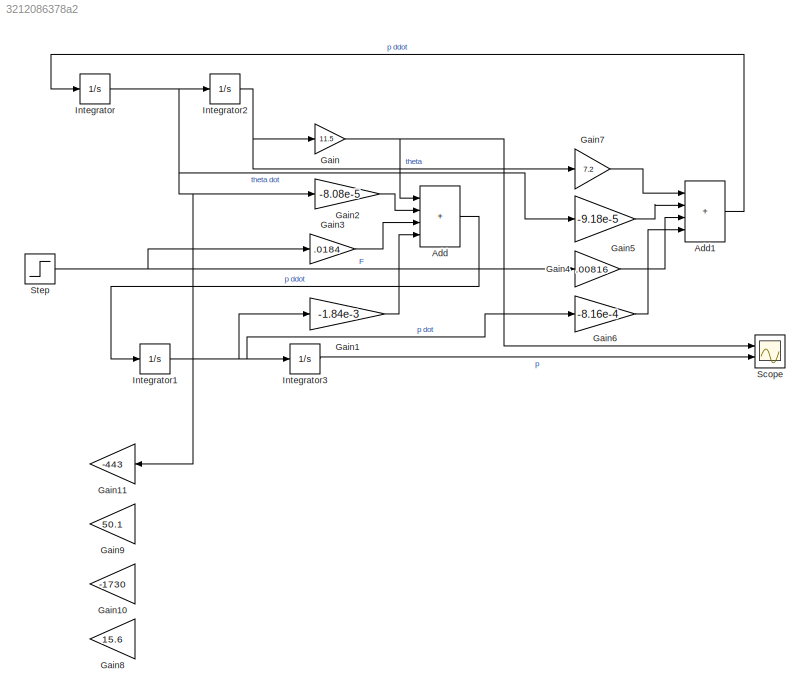
MODEL slx_3212086378a2
KIND model
CONFIG AbsTol = auto
CONFIG EnableMultiTasking = off
CONFIG FixedStep = auto
CONFIG MaxStep = auto
CONFIG MinStep = auto
CONFIG RelTol = 1e-3
CONFIG SampleTimeConstraint = Unconstrained
CONFIG Solver = VariableStepAuto
CONFIG SolverName = VariableStepAuto
CONFIG StartTime = 0.0
CONFIG StopTime = 10.0
BLOCK [Sum] Add
  IconShape = rectangular
  Inputs = ++++
  Ports = [4, 1]
BLOCK [Sum] Add1
  IconShape = rectangular
  Inputs = ++++
  Ports = [4, 1]
BLOCK [Gain] Gain
  Gain = 11.5
BLOCK [Gain] Gain1
  Gain = -1.84e-3
BLOCK [Gain] Gain10
  Gain = -1730
BLOCK [Gain] Gain11
  Gain = -443
BLOCK [Gain] Gain2
  Gain = -8.08e-5
BLOCK [Gain] Gain3
  Gain = .0184
BLOCK [Gain] Gain4
  Gain = .00816
BLOCK [Gain] Gain5
  Gain = -9.18e-5
BLOCK [Gain] Gain6
  Gain = -8.16e-4
BLOCK [Gain] Gain7
  Gain = 7.2
BLOCK [Gain] Gain8
  Gain = 15.6
BLOCK [Gain] Gain9
  Gain = 50.1
BLOCK [Integrator] Integrator
  Ports = [1, 1]
BLOCK [Integrator] Integrator1
  Ports = [1, 1]
BLOCK [Integrator] Integrator2
  Ports = [1, 1]
BLOCK [Integrator] Integrator3
  Ports = [1, 1]
BLOCK [Scope] Scope
  Floating = off
  NumInputPorts = 2
  Ports = [2]
  ScopeSpecificationString = Simulink.scopes.TimeScopeBlockCfg('CurrentConfiguration', extmgr.ConfigurationSet(extmgr.Configuration('Core','General UI',true),extmgr.Configuration('Core','Source UI',true),extmgr.Configuration('Sources','WiredSimulink',true),extmgr.Configuration('Visuals','Time Domain',true,'SerializedDisplays',{struct('MinYLimReal','-24905188.37508','MaxYLimReal','224146695.37568','YLabelReal','','MinYLimMag',...<+1386ch>
BLOCK [Step] Step
  SampleTime = 0
LINE Add1:1 -> Integrator:1
LINE Add:1 -> Integrator1:1
LINE Gain1:1 -> Add:4
LINE Gain2:1 -> Add:2
LINE Gain3:1 -> Add:3
LINE Gain4:1 -> Add1:3
LINE Gain5:1 -> Add1:2
LINE Gain6:1 -> Add1:4
LINE Gain7:1 -> Add1:1
NET Gain:1 -> Add:1, Scope:1
NET Integrator1:1 -> Gain1:1, Gain6:1, Integrator3:1
NET Integrator2:1 -> Gain7:1, Gain:1
LINE Integrator3:1 -> Scope:2
NET Integrator:1 -> Gain11:1, Gain2:1, Gain5:1, Integrator2:1
NET Step:1 -> Gain3:1, Gain4:1
note: NET lines group one-source signal fan-out (src -> all destinations, sorted); 1:1 wires keep LINE
